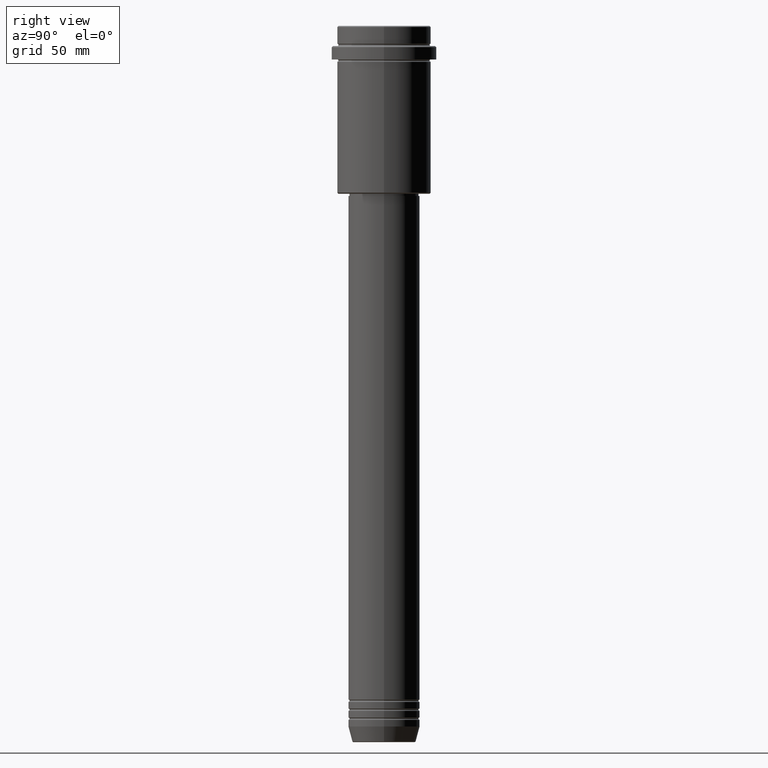
[diagram: clean part render]
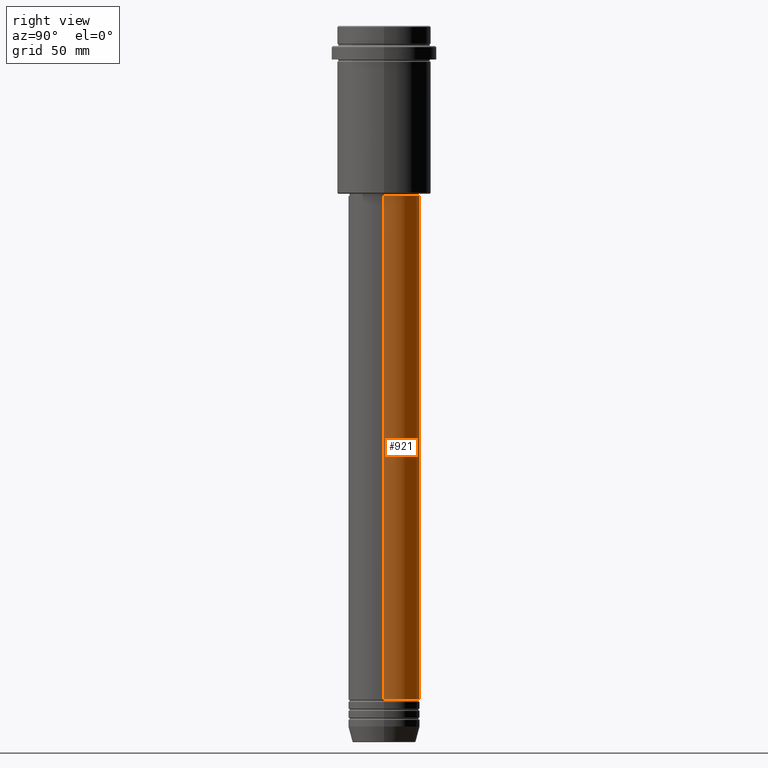
[diagram: same view with one face highlighted and labeled with its STEP entity id]
A machine part, right view. The second image highlights one B-rep face of the part: STEP entity #921.
In plain terms, the highlighted cylindrical surface (edge-blend (fillet) strip) has radius 16 mm, axis along (-0, -0, 1).
Its self-contained STEP definition (entity closure, byte-faithful):
#12 = CARTESIAN_POINT ( 'NONE',  ( 0.000000000000000000, 0.000000000000000000, -300.9999999999998863 ) ) ;
#19 = VERTEX_POINT ( 'NONE', #786 ) ;
#81 = CARTESIAN_POINT ( 'NONE',  ( 16.00000000000000000, 0.000000000000000000, -300.9999999999998863 ) ) ;
#170 = DIRECTION ( 'NONE',  ( 1.000000000000000000, 0.000000000000000000, 0.000000000000000000 ) ) ;
#182 = EDGE_CURVE ( 'NONE', #19, #1264, #494, .T. ) ;
#199 = DIRECTION ( 'NONE',  ( -0.000000000000000000, -0.000000000000000000, 1.000000000000000000 ) ) ;
#216 = CARTESIAN_POINT ( 'NONE',  ( -16.00000000000000000, 1.959434878635765131E-15, 0.000000000000000000 ) ) ;
#223 = EDGE_LOOP ( 'NONE', ( #1345, #641, #1163, #387 ) ) ;
#296 = EDGE_CURVE ( 'NONE', #1306, #19, #1265, .T. ) ;
#310 = FACE_OUTER_BOUND ( 'NONE', #223, .T. ) ;
#387 = ORIENTED_EDGE ( 'NONE', *, *, #296, .F. ) ;
#494 = CIRCLE ( 'NONE', #747, 16.00000000000000355 ) ;
#539 = CARTESIAN_POINT ( 'NONE',  ( -16.00000000000000355, 1.959434878635765526E-15, -75.99999999999992895 ) ) ;
#570 = VECTOR ( 'NONE', #1077, 1000.000000000000000 ) ;
#593 = DIRECTION ( 'NONE',  ( -0.000000000000000000, -0.000000000000000000, 1.000000000000000000 ) ) ;
#617 = VECTOR ( 'NONE', #1076, 1000.000000000000000 ) ;
#641 = ORIENTED_EDGE ( 'NONE', *, *, #1012, .T. ) ;
#644 = EDGE_CURVE ( 'NONE', #1306, #910, #904, .T. ) ;
#740 = CYLINDRICAL_SURFACE ( 'NONE', #1384, 16.00000000000000000 ) ;
#747 = AXIS2_PLACEMENT_3D ( 'NONE', #909, #784, #888 ) ;
#755 = CARTESIAN_POINT ( 'NONE',  ( 0.000000000000000000, 0.000000000000000000, 0.000000000000000000 ) ) ;
#784 = DIRECTION ( 'NONE',  ( -0.000000000000000000, -0.000000000000000000, 1.000000000000000000 ) ) ;
#786 = CARTESIAN_POINT ( 'NONE',  ( 16.00000000000000355, 0.000000000000000000, -75.99999999999992895 ) ) ;
#803 = CARTESIAN_POINT ( 'NONE',  ( -16.00000000000000000, 1.959434878635765131E-15, -300.9999999999998863 ) ) ;
#855 = LINE ( 'NONE', #216, #570 ) ;
#888 = DIRECTION ( 'NONE',  ( 1.000000000000000000, 0.000000000000000000, 0.000000000000000000 ) ) ;
#904 = CIRCLE ( 'NONE', #1291, 16.00000000000000000 ) ;
#909 = CARTESIAN_POINT ( 'NONE',  ( 0.000000000000000000, 0.000000000000000000, -75.99999999999992895 ) ) ;
#910 = VERTEX_POINT ( 'NONE', #803 ) ;
#921 = ADVANCED_FACE ( 'NONE', ( #310 ), #740, .T. ) ;
#1012 = EDGE_CURVE ( 'NONE', #910, #1264, #855, .T. ) ;
#1057 = CARTESIAN_POINT ( 'NONE',  ( 16.00000000000000000, 0.000000000000000000, 0.000000000000000000 ) ) ;
#1076 = DIRECTION ( 'NONE',  ( -0.000000000000000000, -0.000000000000000000, 1.000000000000000000 ) ) ;
#1077 = DIRECTION ( 'NONE',  ( -0.000000000000000000, -0.000000000000000000, 1.000000000000000000 ) ) ;
#1127 = DIRECTION ( 'NONE',  ( 1.000000000000000000, 0.000000000000000000, 0.000000000000000000 ) ) ;
#1163 = ORIENTED_EDGE ( 'NONE', *, *, #182, .F. ) ;
#1264 = VERTEX_POINT ( 'NONE', #539 ) ;
#1265 = LINE ( 'NONE', #1057, #617 ) ;
#1291 = AXIS2_PLACEMENT_3D ( 'NONE', #12, #593, #1127 ) ;
#1306 = VERTEX_POINT ( 'NONE', #81 ) ;
#1345 = ORIENTED_EDGE ( 'NONE', *, *, #644, .T. ) ;
#1384 = AXIS2_PLACEMENT_3D ( 'NONE', #755, #199, #170 ) ;